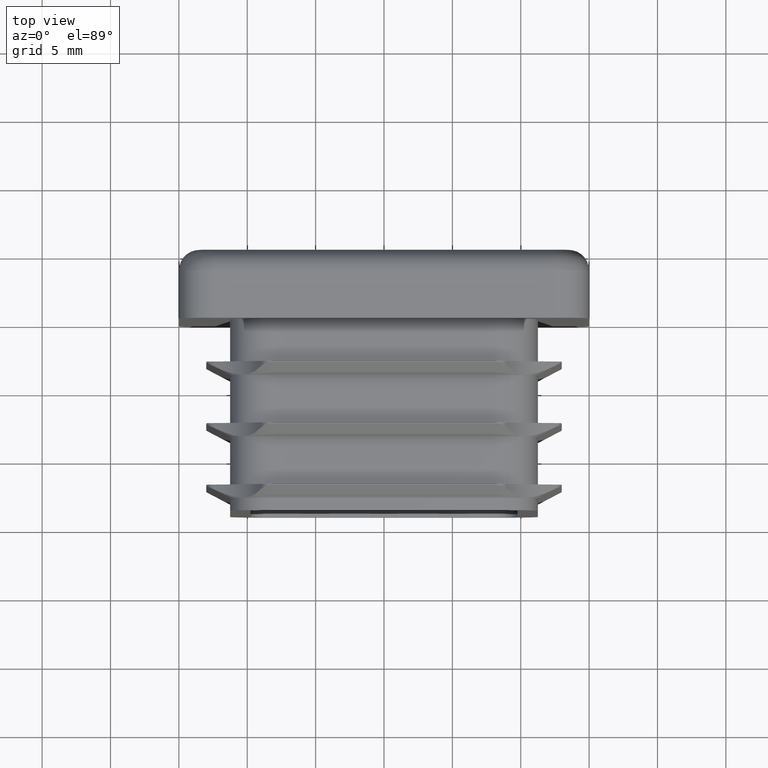
[diagram: clean part render]
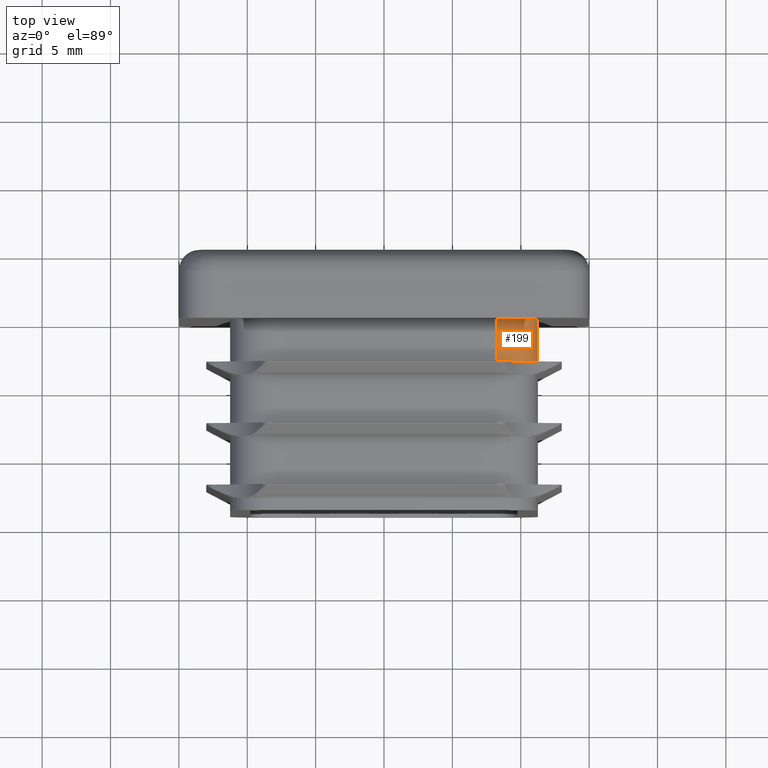
[diagram: same view with one face highlighted and labeled with its STEP entity id]
A machine part, top view. The second image highlights one B-rep face of the part: STEP entity #199.
In plain terms, the highlighted cylindrical surface (partial cylindrical patch) has radius 3 mm, axis along (-0, 1, -0).
Its self-contained STEP definition (entity closure, byte-faithful):
#85 = VERTEX_POINT ( 'NONE', #5240 ) ;
#199 = ADVANCED_FACE ( 'NONE', ( #19314 ), #7654, .T. ) ;
#949 = DIRECTION ( 'NONE',  ( 0.000000000000000000, 0.000000000000000000, 1.000000000000000000 ) ) ;
#1415 = LINE ( 'NONE', #19035, #6623 ) ;
#1442 = VERTEX_POINT ( 'NONE', #14229 ) ;
#2358 = EDGE_CURVE ( 'NONE', #5039, #1442, #19568, .T. ) ;
#2632 = DIRECTION ( 'NONE',  ( 0.000000000000000000, 0.000000000000000000, 1.000000000000000000 ) ) ;
#3625 = CARTESIAN_POINT ( 'NONE',  ( 8.249999999999996447, -3.100000000000000533, 16.25000000000000000 ) ) ;
#4021 = CIRCLE ( 'NONE', #13979, 2.999999999999999112 ) ;
#4379 = ORIENTED_EDGE ( 'NONE', *, *, #6957, .T. ) ;
#4538 = CARTESIAN_POINT ( 'NONE',  ( 8.249999999999996447, -3.100000000000000533, 13.25000000000000178 ) ) ;
#4550 = DIRECTION ( 'NONE',  ( 0.000000000000000000, 1.000000000000000000, 0.000000000000000000 ) ) ;
#4652 = CARTESIAN_POINT ( 'NONE',  ( 8.249999999999996447, 0.000000000000000000, 13.25000000000000178 ) ) ;
#5039 = VERTEX_POINT ( 'NONE', #13605 ) ;
#5240 = CARTESIAN_POINT ( 'NONE',  ( 8.249999999999996447, 0.000000000000000000, 16.25000000000000000 ) ) ;
#5583 = EDGE_CURVE ( 'NONE', #13148, #85, #1415, .T. ) ;
#5618 = DIRECTION ( 'NONE',  ( -0.000000000000000000, 1.000000000000000000, -0.000000000000000000 ) ) ;
#6154 = DIRECTION ( 'NONE',  ( 0.000000000000000000, 1.000000000000000000, 0.000000000000000000 ) ) ;
#6415 = DIRECTION ( 'NONE',  ( 0.000000000000000000, -1.000000000000000000, 0.000000000000000000 ) ) ;
#6623 = VECTOR ( 'NONE', #13814, 1000.000000000000000 ) ;
#6957 = EDGE_CURVE ( 'NONE', #13148, #5039, #20194, .T. ) ;
#7449 = DIRECTION ( 'NONE',  ( 0.000000000000000000, 0.000000000000000000, 1.000000000000000000 ) ) ;
#7559 = ORIENTED_EDGE ( 'NONE', *, *, #10930, .T. ) ;
#7654 = CYLINDRICAL_SURFACE ( 'NONE', #17823, 2.999999999999999112 ) ;
#10143 = AXIS2_PLACEMENT_3D ( 'NONE', #4538, #6154, #949 ) ;
#10930 = EDGE_CURVE ( 'NONE', #20954, #85, #4021, .T. ) ;
#11248 = EDGE_LOOP ( 'NONE', ( #7559, #20280, #4379, #14795, #16181 ) ) ;
#11636 = CARTESIAN_POINT ( 'NONE',  ( 8.249999999999996447, -3.100000000000000533, 13.25000000000000178 ) ) ;
#12313 = EDGE_CURVE ( 'NONE', #1442, #20954, #15977, .T. ) ;
#12620 = CARTESIAN_POINT ( 'NONE',  ( 8.249999999999996447, -14.00000000000000000, 13.25000000000000178 ) ) ;
#12880 = CARTESIAN_POINT ( 'NONE',  ( 11.24999999999999645, 0.000000000000000000, 13.25000000000000355 ) ) ;
#13148 = VERTEX_POINT ( 'NONE', #3625 ) ;
#13605 = CARTESIAN_POINT ( 'NONE',  ( 10.37132034355963306, -3.100000000000000533, 15.37132034355963839 ) ) ;
#13613 = AXIS2_PLACEMENT_3D ( 'NONE', #11636, #4550, #2632 ) ;
#13814 = DIRECTION ( 'NONE',  ( -0.000000000000000000, 1.000000000000000000, -0.000000000000000000 ) ) ;
#13979 = AXIS2_PLACEMENT_3D ( 'NONE', #4652, #6415, #18584 ) ;
#14229 = CARTESIAN_POINT ( 'NONE',  ( 11.24999999999999645, -3.100000000000000533, 13.25000000000000355 ) ) ;
#14795 = ORIENTED_EDGE ( 'NONE', *, *, #2358, .T. ) ;
#14909 = VECTOR ( 'NONE', #16600, 1000.000000000000000 ) ;
#15977 = LINE ( 'NONE', #21803, #14909 ) ;
#16181 = ORIENTED_EDGE ( 'NONE', *, *, #12313, .T. ) ;
#16600 = DIRECTION ( 'NONE',  ( -0.000000000000000000, 1.000000000000000000, -0.000000000000000000 ) ) ;
#17823 = AXIS2_PLACEMENT_3D ( 'NONE', #12620, #5618, #7449 ) ;
#18584 = DIRECTION ( 'NONE',  ( 0.000000000000000000, 0.000000000000000000, 1.000000000000000000 ) ) ;
#19035 = CARTESIAN_POINT ( 'NONE',  ( 8.249999999999996447, -14.00000000000000000, 16.25000000000000000 ) ) ;
#19314 = FACE_OUTER_BOUND ( 'NONE', #11248, .T. ) ;
#19568 = CIRCLE ( 'NONE', #13613, 2.999999999999992450 ) ;
#20194 = CIRCLE ( 'NONE', #10143, 2.999999999999992450 ) ;
#20280 = ORIENTED_EDGE ( 'NONE', *, *, #5583, .F. ) ;
#20954 = VERTEX_POINT ( 'NONE', #12880 ) ;
#21803 = CARTESIAN_POINT ( 'NONE',  ( 11.24999999999999645, -14.00000000000000000, 13.25000000000000355 ) ) ;